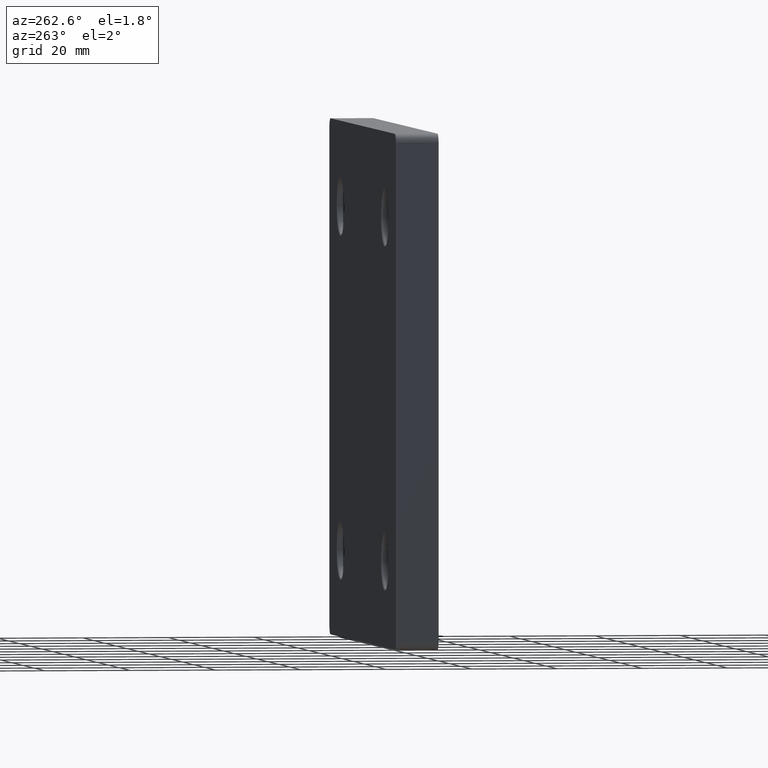
[diagram: clean part render]
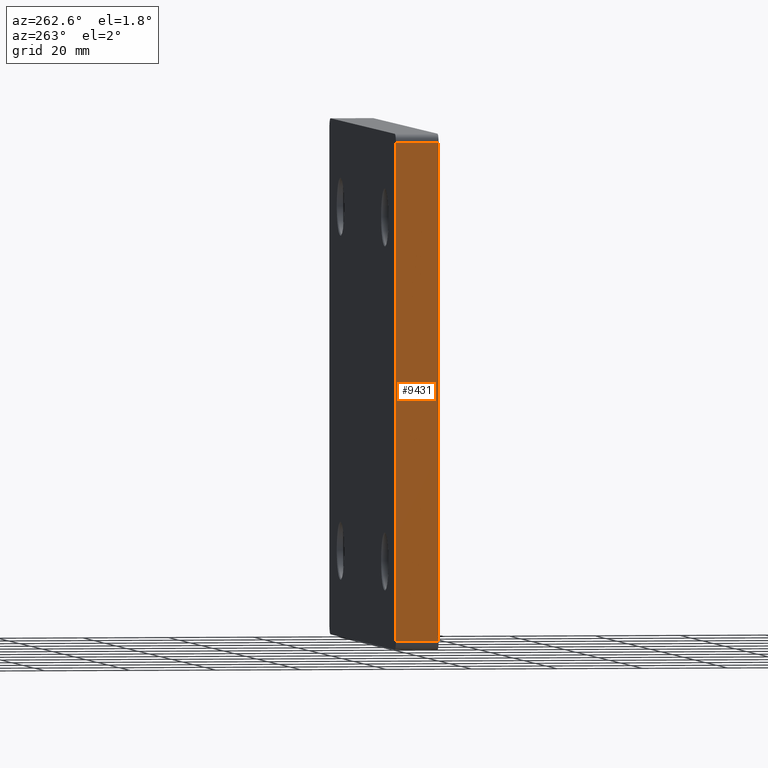
[diagram: same view with one face highlighted and labeled with its STEP entity id]
A machine part, auxiliary view. The second image highlights one B-rep face of the part: STEP entity #9431.
In plain terms, the highlighted planar face has unit normal (1, 0, -0).
Its self-contained STEP definition (entity closure, byte-faithful):
#260 = VERTEX_POINT ( 'NONE', #7886 ) ;
#482 = VECTOR ( 'NONE', #5587, 1000.000000000000000 ) ;
#780 = EDGE_CURVE ( 'NONE', #6924, #260, #3228, .T. ) ;
#819 = CARTESIAN_POINT ( 'NONE',  ( -59.99999999999999289, 0.000000000000000000, -59.99999999999999289 ) ) ;
#1379 = LINE ( 'NONE', #12353, #4918 ) ;
#2276 = CARTESIAN_POINT ( 'NONE',  ( -59.99999999999999289, 0.000000000000000000, -57.99999999999998579 ) ) ;
#2299 = CARTESIAN_POINT ( 'NONE',  ( -59.99999999999999289, 10.00000000000000000, -57.99999999999998579 ) ) ;
#2771 = DIRECTION ( 'NONE',  ( -0.000000000000000000, 1.000000000000000000, -0.000000000000000000 ) ) ;
#3098 = AXIS2_PLACEMENT_3D ( 'NONE', #7119, #8321, #12513 ) ;
#3228 = LINE ( 'NONE', #10981, #9245 ) ;
#3833 = EDGE_LOOP ( 'NONE', ( #12064, #5665, #5539, #5643 ) ) ;
#4423 = CARTESIAN_POINT ( 'NONE',  ( -59.99999999999999289, 10.00000000000000000, -57.99999999999998579 ) ) ;
#4474 = VERTEX_POINT ( 'NONE', #9007 ) ;
#4918 = VECTOR ( 'NONE', #2771, 1000.000000000000000 ) ;
#5276 = DIRECTION ( 'NONE',  ( 1.156482317317871478E-16, 0.000000000000000000, 1.000000000000000000 ) ) ;
#5346 = LINE ( 'NONE', #819, #7838 ) ;
#5520 = VERTEX_POINT ( 'NONE', #2276 ) ;
#5539 = ORIENTED_EDGE ( 'NONE', *, *, #12475, .T. ) ;
#5587 = DIRECTION ( 'NONE',  ( 0.000000000000000000, -1.000000000000000000, 0.000000000000000000 ) ) ;
#5643 = ORIENTED_EDGE ( 'NONE', *, *, #10826, .T. ) ;
#5665 = ORIENTED_EDGE ( 'NONE', *, *, #11766, .T. ) ;
#6924 = VERTEX_POINT ( 'NONE', #4423 ) ;
#6956 = FACE_OUTER_BOUND ( 'NONE', #3833, .T. ) ;
#7119 = CARTESIAN_POINT ( 'NONE',  ( -59.99999999999999289, 10.00000000000000000, -59.99999999999999289 ) ) ;
#7801 = DIRECTION ( 'NONE',  ( 1.156482317317871478E-16, 0.000000000000000000, 1.000000000000000000 ) ) ;
#7838 = VECTOR ( 'NONE', #5276, 1000.000000000000000 ) ;
#7886 = CARTESIAN_POINT ( 'NONE',  ( -59.99999999999997868, 10.00000000000000000, 58.00000000000000000 ) ) ;
#8321 = DIRECTION ( 'NONE',  ( 1.000000000000000000, 0.000000000000000000, -1.156482317317871478E-16 ) ) ;
#9007 = CARTESIAN_POINT ( 'NONE',  ( -59.99999999999997868, 0.000000000000000000, 58.00000000000000000 ) ) ;
#9245 = VECTOR ( 'NONE', #7801, 1000.000000000000000 ) ;
#9337 = PLANE ( 'NONE',  #3098 ) ;
#9431 = ADVANCED_FACE ( 'NONE', ( #6956 ), #9337, .F. ) ;
#9699 = LINE ( 'NONE', #2299, #482 ) ;
#10826 = EDGE_CURVE ( 'NONE', #4474, #260, #1379, .T. ) ;
#10981 = CARTESIAN_POINT ( 'NONE',  ( -59.99999999999999289, 10.00000000000000000, -59.99999999999999289 ) ) ;
#11766 = EDGE_CURVE ( 'NONE', #6924, #5520, #9699, .T. ) ;
#12064 = ORIENTED_EDGE ( 'NONE', *, *, #780, .F. ) ;
#12353 = CARTESIAN_POINT ( 'NONE',  ( -59.99999999999997868, 10.00000000000000000, 58.00000000000000000 ) ) ;
#12475 = EDGE_CURVE ( 'NONE', #5520, #4474, #5346, .T. ) ;
#12513 = DIRECTION ( 'NONE',  ( -1.156482317317871478E-16, 0.000000000000000000, -1.000000000000000000 ) ) ;